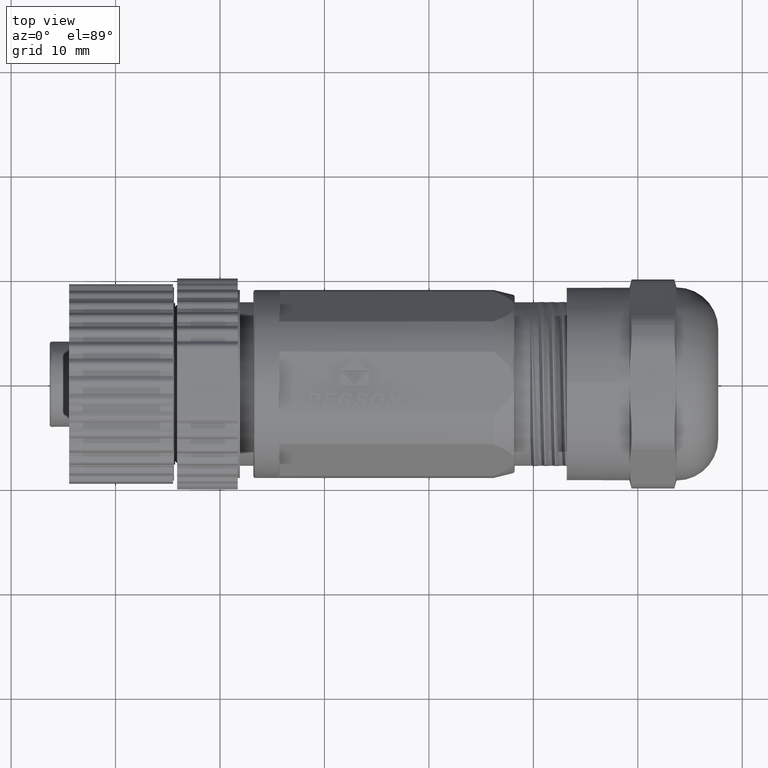
[diagram: clean part render]
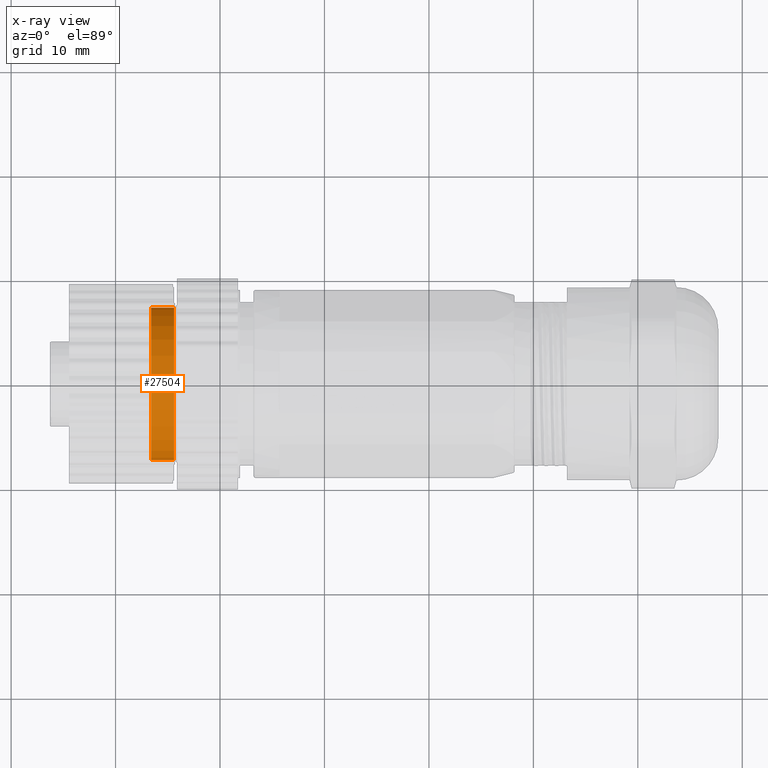
[diagram: x-ray — body ghosted, one internal face saturated and labeled with its STEP entity id]
A machine part, top view, then the same camera in x-ray: the body is ghosted and one INTERNAL B-rep face — a face not visible from any outside direction — is saturated and labeled: STEP entity #27504.
In plain terms, the highlighted cylindrical surface (partial cylindrical patch) has radius 7.3 mm, axis along (1, 0, 0).
Its self-contained STEP definition (entity closure, byte-faithful):
#4380=CARTESIAN_POINT('',(3.399999999999E0,0.E0,0.E0));
#4381=DIRECTION('',(-1.E0,0.E0,0.E0));
#4382=DIRECTION('',(0.E0,-1.E0,0.E0));
#4383=AXIS2_PLACEMENT_3D('',#4380,#4381,#4382);
#4390=CARTESIAN_POINT('',(5.6E0,0.E0,0.E0));
#4391=DIRECTION('',(1.E0,0.E0,0.E0));
#4392=DIRECTION('',(0.E0,1.E0,0.E0));
#4393=AXIS2_PLACEMENT_3D('',#4390,#4391,#4392);
#4395=DIRECTION('',(-1.E0,0.E0,0.E0));
#4396=VECTOR('',#4395,2.200000000001E0);
#4397=CARTESIAN_POINT('',(5.6E0,7.3E0,0.E0));
#4398=LINE('',#4397,#4396);
#4399=DIRECTION('',(1.E0,0.E0,0.E0));
#4400=VECTOR('',#4399,2.200000000001E0);
#4401=CARTESIAN_POINT('',(3.399999999999E0,-7.3E0,0.E0));
#4402=LINE('',#4401,#4400);
#20118=CARTESIAN_POINT('',(5.6E0,7.3E0,0.E0));
#20119=VERTEX_POINT('',#20118);
#20120=CARTESIAN_POINT('',(5.6E0,-7.3E0,0.E0));
#20121=VERTEX_POINT('',#20120);
#23202=CARTESIAN_POINT('',(3.399999999999E0,-7.3E0,0.E0));
#23203=CARTESIAN_POINT('',(3.399999999999E0,7.3E0,0.E0));
#23204=VERTEX_POINT('',#23202);
#23205=VERTEX_POINT('',#23203);
#27490=CARTESIAN_POINT('',(4.862948711768E0,0.E0,0.E0));
#27491=DIRECTION('',(1.E0,0.E0,0.E0));
#27492=DIRECTION('',(0.E0,-1.E0,0.E0));
#27493=AXIS2_PLACEMENT_3D('',#27490,#27491,#27492);
#27494=CYLINDRICAL_SURFACE('',#27493,7.3E0);
#27496=ORIENTED_EDGE('',*,*,#27495,.F.);
#27497=ORIENTED_EDGE('',*,*,#27478,.T.);
#27499=ORIENTED_EDGE('',*,*,#27498,.F.);
#27501=ORIENTED_EDGE('',*,*,#27500,.T.);
#27502=EDGE_LOOP('',(#27496,#27497,#27499,#27501));
#27503=FACE_OUTER_BOUND('',#27502,.F.);
#27504=ADVANCED_FACE('',(#27503),#27494,.T.);
#4384=CIRCLE('',#4383,7.3E0);
#4394=CIRCLE('',#4393,7.3E0);
#27478=EDGE_CURVE('',#23204,#23205,#4384,.T.);
#27495=EDGE_CURVE('',#23204,#20121,#4402,.T.);
#27498=EDGE_CURVE('',#20119,#23205,#4398,.T.);
#27500=EDGE_CURVE('',#20119,#20121,#4394,.T.);